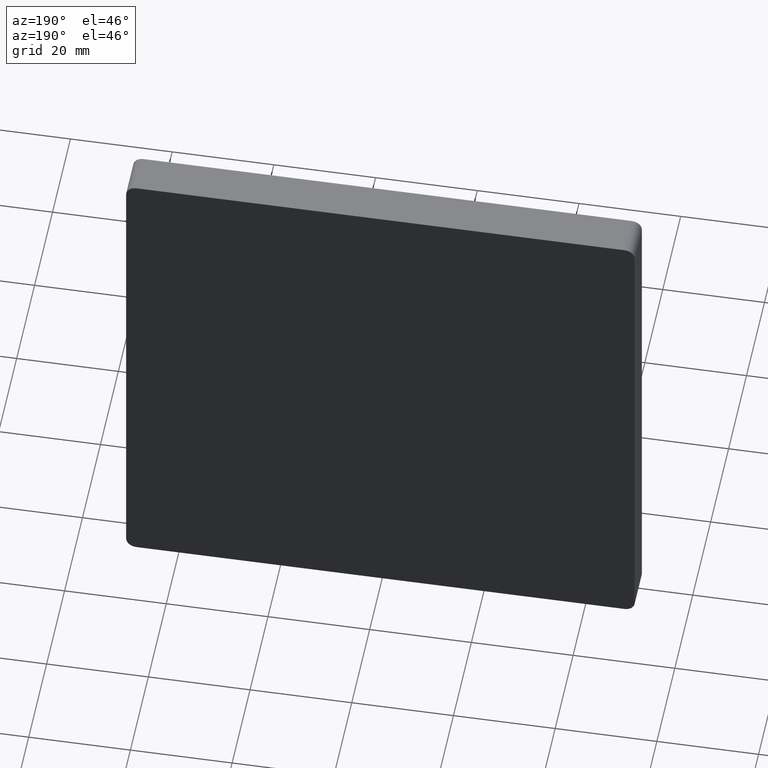
[diagram: clean part render]
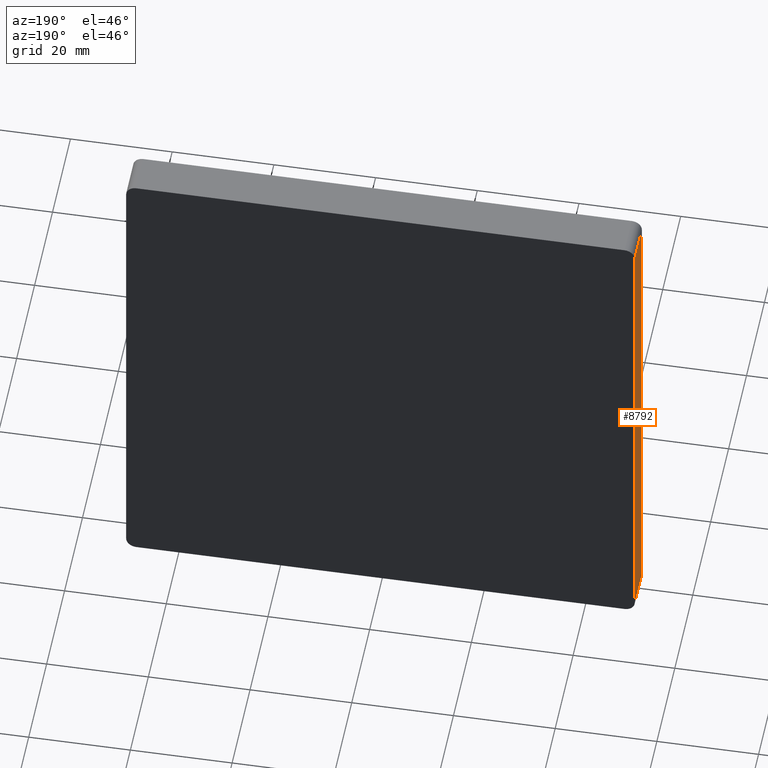
[diagram: same view with one face highlighted and labeled with its STEP entity id]
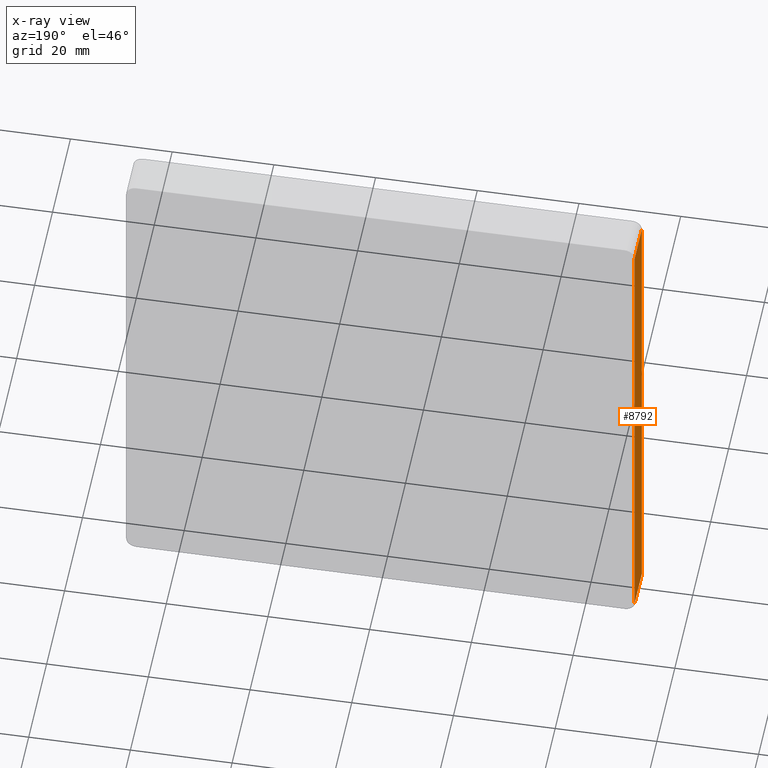
[diagram: x-ray of the same camera — body ghosted, the highlighted face saturated]
A machine part, auxiliary view. The second image highlights one B-rep face of the part: STEP entity #8792.
The next image is the same camera in x-ray: the body ghosted, the highlighted face saturated — about 0% of this face is hidden behind the body in this view.
In plain terms, the highlighted planar face has unit normal (1, 0, -0).
Its self-contained STEP definition (entity closure, byte-faithful):
#2 = LINE ( 'NONE', #9302, #14290 ) ;
#43 = EDGE_CURVE ( 'NONE', #11091, #11537, #2, .T. ) ;
#384 = CARTESIAN_POINT ( 'NONE',  ( -50.00000000000000000, 0.000000000000000000, -49.99999999999998579 ) ) ;
#1462 = VECTOR ( 'NONE', #11995, 1000.000000000000000 ) ;
#2667 = ORIENTED_EDGE ( 'NONE', *, *, #12004, .T. ) ;
#3417 = DIRECTION ( 'NONE',  ( 1.000000000000000000, 0.000000000000000000, -1.387778780781445676E-16 ) ) ;
#3781 = VERTEX_POINT ( 'NONE', #14659 ) ;
#3866 = CARTESIAN_POINT ( 'NONE',  ( -49.99999999999998579, 8.000000000000000000, 48.00000000000001421 ) ) ;
#3953 = ORIENTED_EDGE ( 'NONE', *, *, #4591, .F. ) ;
#4591 = EDGE_CURVE ( 'NONE', #11091, #4870, #14779, .T. ) ;
#4870 = VERTEX_POINT ( 'NONE', #7531 ) ;
#5785 = PLANE ( 'NONE',  #10763 ) ;
#6359 = DIRECTION ( 'NONE',  ( 1.387778780781445676E-16, 0.000000000000000000, 1.000000000000000000 ) ) ;
#6952 = DIRECTION ( 'NONE',  ( -1.387778780781445676E-16, 0.000000000000000000, -1.000000000000000000 ) ) ;
#7531 = CARTESIAN_POINT ( 'NONE',  ( -49.99999999999998579, 8.000000000000000000, 48.00000000000001421 ) ) ;
#7548 = ORIENTED_EDGE ( 'NONE', *, *, #43, .T. ) ;
#7810 = VECTOR ( 'NONE', #14591, 1000.000000000000000 ) ;
#8098 = VECTOR ( 'NONE', #6359, 1000.000000000000000 ) ;
#8792 = ADVANCED_FACE ( 'NONE', ( #13978 ), #5785, .F. ) ;
#9092 = EDGE_LOOP ( 'NONE', ( #3953, #7548, #14494, #2667 ) ) ;
#9302 = CARTESIAN_POINT ( 'NONE',  ( -50.00000000000000000, 8.000000000000000000, -47.99999999999998579 ) ) ;
#9469 = CARTESIAN_POINT ( 'NONE',  ( -50.00000000000000000, 8.000000000000000000, -47.99999999999998579 ) ) ;
#10763 = AXIS2_PLACEMENT_3D ( 'NONE', #12597, #3417, #6952 ) ;
#11040 = LINE ( 'NONE', #3866, #7810 ) ;
#11091 = VERTEX_POINT ( 'NONE', #9469 ) ;
#11537 = VERTEX_POINT ( 'NONE', #12094 ) ;
#11995 = DIRECTION ( 'NONE',  ( 1.387778780781445676E-16, 0.000000000000000000, 1.000000000000000000 ) ) ;
#12004 = EDGE_CURVE ( 'NONE', #3781, #4870, #11040, .T. ) ;
#12094 = CARTESIAN_POINT ( 'NONE',  ( -50.00000000000000000, 0.000000000000000000, -47.99999999999998579 ) ) ;
#12292 = LINE ( 'NONE', #384, #1462 ) ;
#12597 = CARTESIAN_POINT ( 'NONE',  ( -50.00000000000000000, 8.000000000000000000, -49.99999999999998579 ) ) ;
#12731 = DIRECTION ( 'NONE',  ( 0.000000000000000000, -1.000000000000000000, 0.000000000000000000 ) ) ;
#13559 = EDGE_CURVE ( 'NONE', #11537, #3781, #12292, .T. ) ;
#13978 = FACE_OUTER_BOUND ( 'NONE', #9092, .T. ) ;
#14290 = VECTOR ( 'NONE', #12731, 1000.000000000000000 ) ;
#14343 = CARTESIAN_POINT ( 'NONE',  ( -50.00000000000000000, 8.000000000000000000, -49.99999999999998579 ) ) ;
#14494 = ORIENTED_EDGE ( 'NONE', *, *, #13559, .T. ) ;
#14591 = DIRECTION ( 'NONE',  ( -0.000000000000000000, 1.000000000000000000, -0.000000000000000000 ) ) ;
#14659 = CARTESIAN_POINT ( 'NONE',  ( -49.99999999999998579, 0.000000000000000000, 48.00000000000001421 ) ) ;
#14779 = LINE ( 'NONE', #14343, #8098 ) ;